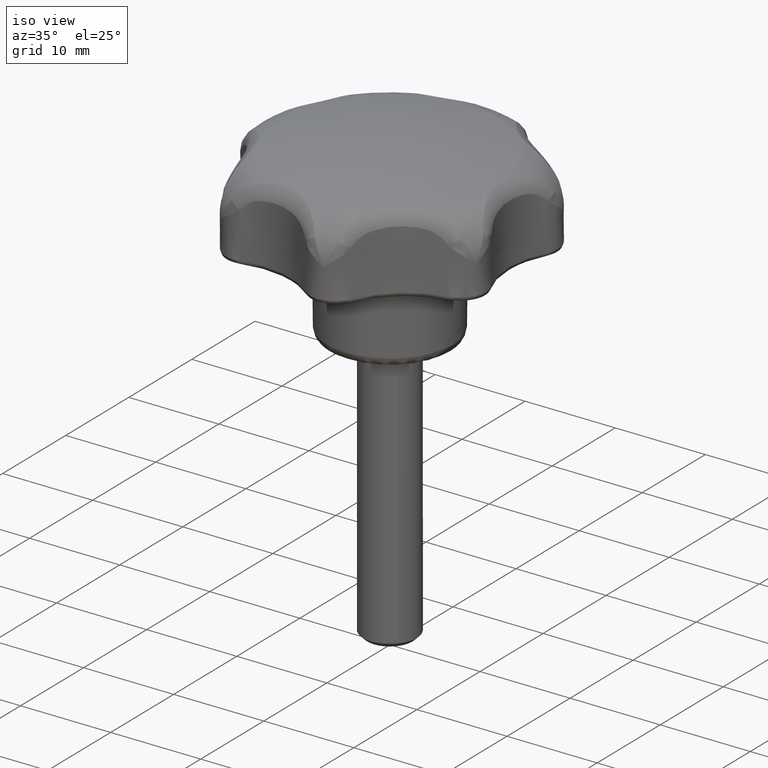
[diagram: clean part render]
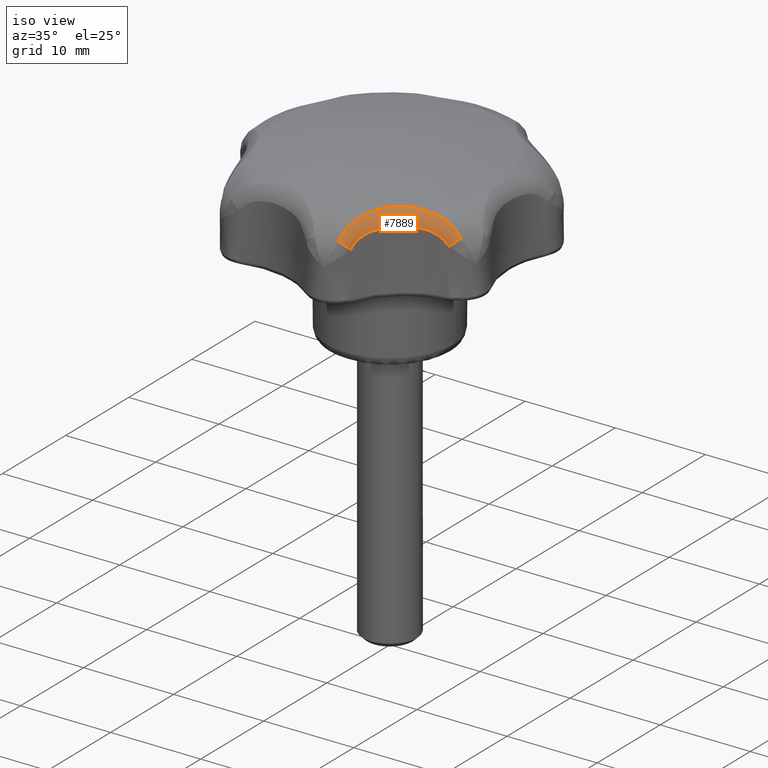
[diagram: same view with one face highlighted and labeled with its STEP entity id]
A machine part, iso view. The second image highlights one B-rep face of the part: STEP entity #7889.
In plain terms, the highlighted face is a freeform B-spline surface patch.
Its self-contained STEP definition (entity closure, byte-faithful):
#2099=CARTESIAN_POINT('',(4.498249366833649,-14.657933771030679,16.295273531500449));
#2100=VERTEX_POINT('',#2099);
#2122=CARTESIAN_POINT('',(13.289473497957600,-7.647166174740640,16.295274292669450));
#2123=VERTEX_POINT('',#2122);
#2124=CARTESIAN_POINT('',(4.498249366833649,-14.657933771030679,16.295273531500449));
#2125=CARTESIAN_POINT('',(4.547301666614835,-14.501486533801931,16.529939429933950));
#2126=CARTESIAN_POINT('',(4.604278833685854,-14.327083374151760,16.745140064422561));
#2127=CARTESIAN_POINT('',(4.703498533668909,-14.042074303940669,17.041445214824609));
#2128=CARTESIAN_POINT('',(4.738877460456014,-13.943147774873619,17.135771844831570));
#2129=CARTESIAN_POINT('',(4.795765375623886,-13.789165535130650,17.270755648086919));
#2130=CARTESIAN_POINT('',(4.815365533823633,-13.736905309844641,17.314664893337198));
#2131=CARTESIAN_POINT('',(4.855913081148104,-13.630561019317740,17.400328214134440));
#2132=CARTESIAN_POINT('',(4.876909335491823,-13.576355468543881,17.442167133465482));
#2133=CARTESIAN_POINT('',(4.984502991053751,-13.303271022882249,17.644267648411361));
#2134=CARTESIAN_POINT('',(5.079292714286489,-13.077127177694161,17.784387911328810));
#2135=CARTESIAN_POINT('',(5.289165352590865,-12.614275819528590,18.027959314767351));
#2136=CARTESIAN_POINT('',(5.404235188829826,-12.377531750667840,18.131353806650111));
#2137=CARTESIAN_POINT('',(5.595289642947687,-12.017937846422280,18.262597946153061));
#2138=CARTESIAN_POINT('',(5.661478069703806,-11.898452233224729,18.301950555650009));
#2139=CARTESIAN_POINT('',(5.798628088082479,-11.661835420837640,18.372653416792041));
#2140=CARTESIAN_POINT('',(5.869683838364023,-11.544526257276541,18.404067596445881));
#2141=CARTESIAN_POINT('',(6.090906208089690,-11.196351638662939,18.488074358361501));
#2142=CARTESIAN_POINT('',(6.249103564735735,-10.969232533770469,18.530486403391219));
#2143=CARTESIAN_POINT('',(6.590837403985158,-10.529199230870130,18.595143588504222));
#2144=CARTESIAN_POINT('',(6.774385912575411,-10.316300797439450,18.617424402711571));
#2145=CARTESIAN_POINT('',(7.022506635711278,-10.061705709125601,18.635685835091110));
#2146=CARTESIAN_POINT('',(7.073099061020627,-10.011336850719800,18.638850836703380));
#2147=CARTESIAN_POINT('',(7.175449127583285,-9.912537695061136,18.644215525570111));
#2148=CARTESIAN_POINT('',(7.227261431531995,-9.864046651679541,18.646420931925700));
#2149=CARTESIAN_POINT('',(7.384616984312316,-9.721305407181662,18.651690826111079));
#2150=CARTESIAN_POINT('',(7.492081254836988,-9.629790025064336,18.653419163061969));
#2151=CARTESIAN_POINT('',(7.822126834071614,-9.366127945604983,18.653556951328831));
#2152=CARTESIAN_POINT('',(8.052395121778393,-9.204907285530364,18.647070093605571));
#2153=CARTESIAN_POINT('',(8.412381438180280,-8.983889718054750,18.625862390046439));
#2154=CARTESIAN_POINT('',(8.534798547471725,-8.913675047012507,18.616841675139749));
#2155=CARTESIAN_POINT('',(8.784257847170524,-8.779883513470153,18.594197413473520));
#2156=CARTESIAN_POINT('',(8.911454488118887,-8.716258401308828,18.580538543643250));
#2157=CARTESIAN_POINT('',(9.295160598681646,-8.536776385478550,18.531869736254290));
#2158=CARTESIAN_POINT('',(9.555140653066816,-8.431502373862111,18.489125425107471));
#2159=CARTESIAN_POINT('',(9.948900820643528,-8.291408057651450,18.404108594151829));
#2160=CARTESIAN_POINT('',(10.081084060515771,-8.247603793721899,18.372177363919501));
#2161=CARTESIAN_POINT('',(10.343750890624850,-8.166166773736132,18.300972774400190));
#2162=CARTESIAN_POINT('',(10.474451289030149,-8.128442944612274,18.261668494817549));
#2163=CARTESIAN_POINT('',(10.863960813198119,-8.023227640303849,18.131505643429520));
#2164=CARTESIAN_POINT('',(11.120187915265999,-7.963652609066551,18.028449494022670));
#2165=CARTESIAN_POINT('',(11.496569766588729,-7.886875651902168,17.844245987909112));
#2166=CARTESIAN_POINT('',(11.621165595280580,-7.863319375940958,17.777589641798770));
#2167=CARTESIAN_POINT('',(11.863193078260149,-7.820653033398059,17.635787024985110));
#2168=CARTESIAN_POINT('',(11.980991362920220,-7.801454965642704,17.560507453400671));
#2169=CARTESIAN_POINT('',(12.324263369141150,-7.749313643538430,17.321105611509221));
#2170=CARTESIAN_POINT('',(12.539669904084700,-7.721787998382311,17.143495710726171));
#2171=CARTESIAN_POINT('',(12.840038069560750,-7.688367141500480,16.847371865266631));
#2172=CARTESIAN_POINT('',(12.936359289434430,-7.678547944736433,16.743696717064559));
#2173=CARTESIAN_POINT('',(13.120754091833600,-7.661150524232450,16.525678345322131));
#2174=CARTESIAN_POINT('',(13.207794364567439,-7.653668250358852,16.412548137069749));
#2175=CARTESIAN_POINT('',(13.289473497957600,-7.647166174740640,16.295274292669450));
#2176=B_SPLINE_CURVE_WITH_KNOTS('',3,(#2124,#2125,#2126,#2127,#2128,#2129,#2130,#2131,#2132,#2133,#2134,#2135,#2136,#2137,#2138,#2139,#2140,#2141,#2142,#2143,#2144,#2145,#2146,#2147,#2148,#2149,#2150,#2151,#2152,#2153,#2154,#2155,#2156,#2157,#2158,#2159,#2160,#2161,#2162,#2163,#2164,#2165,#2166,#2167,#2168,#2169,#2170,#2171,#2172,#2173,#2174,#2175),.UNSPECIFIED.,.F.,.U.,(4,2,2,2,2,2,2,2,2,2,2,2,2,2,2,2,2,2,2,2,2,2,2,2,2,4),(0.0,0.062500000000000,0.093750000000000,0.109375000000000,0.125000000000000,0.187500000000000,0.250000000000001,0.281250000000001,0.312500000000002,0.375000000000002,0.437500000000003,0.453125000000003,0.468750000000003,0.500000000000003,0.562500000000003,0.593750000000003,0.625000000000003,0.687500000000004,0.718750000000004,0.750000000000004,0.812500000000003,0.843750000000003,0.875000000000003,0.937500000000002,0.968750000000001,1.0),.UNSPECIFIED.);
#2177=EDGE_CURVE('',#2100,#2123,#2176,.T.);
#7643=CARTESIAN_POINT('',(5.467261805373973,-14.068937233871152,15.495992849317442));
#7644=CARTESIAN_POINT('',(5.471632998184584,-14.059511919960016,15.511425003664293));
#7645=CARTESIAN_POINT('',(5.476004174464524,-14.050086641692829,15.526857099650911));
#7646=CARTESIAN_POINT('',(5.535013413189982,-13.922848923581562,15.735184601858379));
#7647=CARTESIAN_POINT('',(5.599131420575444,-13.790608486728605,15.906028658343502));
#7648=CARTESIAN_POINT('',(5.747595977648482,-13.504081055805173,16.210418568564400));
#7649=CARTESIAN_POINT('',(5.833095651637699,-13.347877774913238,16.344993542907240));
#7650=CARTESIAN_POINT('',(6.020147792591007,-13.028985186124896,16.573263611256323));
#7651=CARTESIAN_POINT('',(6.121586691680171,-12.866221119907632,16.667772483386845));
#7652=CARTESIAN_POINT('',(6.340347124707152,-12.537981182943303,16.826692218822298));
#7653=CARTESIAN_POINT('',(6.458496672852857,-12.371440799582309,16.891333614043035));
#7654=CARTESIAN_POINT('',(6.829892861468679,-11.881360143755433,17.047877659758537));
#7655=CARTESIAN_POINT('',(7.099394283332173,-11.567499715481684,17.104613857351794));
#7656=CARTESIAN_POINT('',(7.680382724439130,-10.971211318864507,17.174783656819848));
#7657=CARTESIAN_POINT('',(7.993829901475031,-10.687453128838406,17.187992338117237));
#7658=CARTESIAN_POINT('',(8.645844890440227,-10.167828034506131,17.187844410328221));
#7659=CARTESIAN_POINT('',(8.985886651792313,-9.930059591966009,17.174772803036355));
#7660=CARTESIAN_POINT('',(9.515968666056455,-9.606251330330137,17.122622321225432));
#7661=CARTESIAN_POINT('',(9.695995746832180,-9.503810490444739,17.099542556477122));
#7662=CARTESIAN_POINT('',(10.062498036945621,-9.310091797271475,17.036296109498483));
#7663=CARTESIAN_POINT('',(10.250064217788511,-9.218360080149667,16.995799313948893));
#7664=CARTESIAN_POINT('',(10.623951037852862,-9.049539013200334,16.891390931900418));
#7665=CARTESIAN_POINT('',(10.810514308261482,-8.972239831765526,16.827563673707019));
#7666=CARTESIAN_POINT('',(11.180393379496053,-8.831476693252213,16.668329660420849));
#7667=CARTESIAN_POINT('',(11.365323743456194,-8.767568462241854,16.571738541774469));
#7668=CARTESIAN_POINT('',(11.716464830381950,-8.656680095171385,16.344027584285989));
#7669=CARTESIAN_POINT('',(11.883511449817988,-8.609273807367158,16.212947943941984));
#7670=CARTESIAN_POINT('',(12.195687855741877,-8.528234810918795,15.909600778779925));
#7671=CARTESIAN_POINT('',(12.341757219555111,-8.494441582198830,15.735731382287870));
#7672=CARTESIAN_POINT('',(12.479324268424094,-8.465142107705912,15.526813816561990));
#7673=CARTESIAN_POINT('',(12.489514699387886,-8.462971716797993,15.511338017319723));
#7674=CARTESIAN_POINT('',(12.499705168890605,-8.460801317681918,15.495862159549876));
#7675=CARTESIAN_POINT('',(5.466093613621228,-14.071480276918484,15.498075191735138));
#7676=CARTESIAN_POINT('',(5.470466969526437,-14.062043460434708,15.513526427383205));
#7677=CARTESIAN_POINT('',(5.474840317157541,-14.052606661804761,15.528977633798553));
#7678=CARTESIAN_POINT('',(5.533879677186913,-13.925211677725484,15.737565977417860));
#7679=CARTESIAN_POINT('',(5.598032492397952,-13.792812939009430,15.908628450618167));
#7680=CARTESIAN_POINT('',(5.746581419260206,-13.505960785868579,16.213418707945674));
#7681=CARTESIAN_POINT('',(5.832131136595152,-13.349589731441837,16.348176824684536));
#7682=CARTESIAN_POINT('',(6.019292600940926,-13.030378851294511,16.576771906548704));
#7683=CARTESIAN_POINT('',(6.120790412752829,-12.867464170449029,16.671423385609000));
#7684=CARTESIAN_POINT('',(6.339672183411906,-12.538947554484938,16.830597804638749));
#7685=CARTESIAN_POINT('',(6.457884363017943,-12.372280366823597,16.895351897591713));
#7686=CARTESIAN_POINT('',(6.829459805910013,-11.881870609645793,17.052186737387640));
#7687=CARTESIAN_POINT('',(7.099070378629141,-11.567852389755245,17.109064603456929));
#7688=CARTESIAN_POINT('',(7.680237552304212,-10.971340558079406,17.179423245509565));
#7689=CARTESIAN_POINT('',(7.993755929786319,-10.687512041947866,17.192681046380830));
#7690=CARTESIAN_POINT('',(8.645920004829298,-10.167768210721158,17.192532638009389));
#7691=CARTESIAN_POINT('',(8.986044739544125,-9.929947008888620,17.179412476597758));
#7692=CARTESIAN_POINT('',(9.516317574887824,-9.606046366273128,17.127122612029357));
#7693=CARTESIAN_POINT('',(9.696420347888653,-9.503572563196057,17.103984026092316));
#7694=CARTESIAN_POINT('',(10.063103691204493,-9.309785510645368,17.040595119609751));
#7695=CARTESIAN_POINT('',(10.250776546719980,-9.218018167949493,17.000013542312054));
#7696=CARTESIAN_POINT('',(10.624905688523024,-9.049128904040849,16.895409312827336));
#7697=CARTESIAN_POINT('',(10.811604916617862,-8.971797218846071,16.831470702809664));
#7698=CARTESIAN_POINT('',(11.181781519216937,-8.830977123082752,16.671981396316895));
#7699=CARTESIAN_POINT('',(11.366875150369649,-8.767044527970260,16.575244615924248));
#7700=CARTESIAN_POINT('',(11.718349739244037,-8.656120624993134,16.347209556981220));
#7701=CARTESIAN_POINT('',(11.885566671671629,-8.608703139434734,16.215951493582097));
#7702=CARTESIAN_POINT('',(12.198077982404492,-8.527653999625807,15.912205190684764));
#7703=CARTESIAN_POINT('',(12.344312607824763,-8.493862015741094,15.738113468862091));
#7704=CARTESIAN_POINT('',(12.482040120817159,-8.464568189562584,15.528934294970826));
#7705=CARTESIAN_POINT('',(12.492242298554462,-8.462398246790912,15.513439329116778));
#7706=CARTESIAN_POINT('',(12.502444495594316,-8.460228299913689,15.497944333946181));
#7707=CARTESIAN_POINT('',(5.206178235148676,-14.637291492894867,15.961383391206153));
#7708=CARTESIAN_POINT('',(5.210978067409922,-14.625414398064128,15.981178855901796));
#7709=CARTESIAN_POINT('',(5.215779909615621,-14.613532329663578,16.000982610008876));
#7710=CARTESIAN_POINT('',(5.280802117353284,-14.452636097176613,16.269147151527594));
#7711=CARTESIAN_POINT('',(5.351903432822786,-14.286548360370674,16.490908931507924));
#7712=CARTESIAN_POINT('',(5.517447150931793,-13.930490884587462,16.890989116859476));
#7713=CARTESIAN_POINT('',(5.613189265331540,-13.738198461591631,17.070771743724194));
#7714=CARTESIAN_POINT('',(5.822921026386666,-13.350396269302969,17.382356795625761));
#7715=CARTESIAN_POINT('',(5.936768536225150,-13.154735986133039,17.515155217351868));
#7716=CARTESIAN_POINT('',(6.181534638887087,-12.765366687181832,17.745669612054520));
#7717=CARTESIAN_POINT('',(6.313359983265118,-12.570444642304198,17.843793200380929));
#7718=CARTESIAN_POINT('',(6.724970817201526,-12.005037403343819,18.091894356247874));
#7719=CARTESIAN_POINT('',(7.019791718633990,-11.654172667170322,18.198425714562553));
#7720=CARTESIAN_POINT('',(7.643955189441937,-11.003640862086728,18.338979385337765));
#7721=CARTESIAN_POINT('',(7.975153484202815,-10.702327546799633,18.371800272271251));
#7722=CARTESIAN_POINT('',(8.664808686520409,-10.152724589306205,18.371460423521462));
#7723=CARTESIAN_POINT('',(9.025555592630832,-9.901809133693048,18.339005540251147));
#7724=CARTESIAN_POINT('',(9.602171190921309,-9.555612258938528,18.234478471169783));
#7725=CARTESIAN_POINT('',(9.800256425002081,-9.445387516869156,18.190144256808058));
#7726=CARTESIAN_POINT('',(10.209232743858033,-9.235886295278007,18.077837516087076));
#7727=CARTESIAN_POINT('',(10.421387160768392,-9.136126435290896,18.009367587906684));
#7728=CARTESIAN_POINT('',(10.850234699657912,-8.952329630490441,17.843879605603753));
#7729=CARTESIAN_POINT('',(11.067154501395226,-8.868084875983513,17.746959438107865));
#7730=CARTESIAN_POINT('',(11.502595914541395,-8.715520948589520,17.515937826456121));
#7731=CARTESIAN_POINT('',(11.723082024682451,-8.646747920023859,17.380247934633708));
#7732=CARTESIAN_POINT('',(12.146202354792623,-8.529127334282501,17.069480732873384));
#7733=CARTESIAN_POINT('',(12.349771494645656,-8.479808632948307,16.894351359034950));
#7734=CARTESIAN_POINT('',(12.733442125285533,-8.397558157881008,16.495567055539080));
#7735=CARTESIAN_POINT('',(12.914737725274989,-8.364488617322037,16.269853412262751));
#7736=CARTESIAN_POINT('',(13.086555659230182,-8.336821027638365,16.000926863595407));
#7737=CARTESIAN_POINT('',(13.099244280635929,-8.334777797559735,15.981066846172055));
#7738=CARTESIAN_POINT('',(13.111927590679157,-8.332735422762012,15.961215142004269));
#7739=CARTESIAN_POINT('',(4.481149670002870,-14.702426942845467,16.230173281754475));
#7740=CARTESIAN_POINT('',(4.485769196017586,-14.687680041046736,16.252283949954307));
#7741=CARTESIAN_POINT('',(4.490388713349550,-14.672933166965922,16.274394576595455));
#7742=CARTESIAN_POINT('',(4.552751323040168,-14.473853157871691,16.572883851588749));
#7743=CARTESIAN_POINT('',(4.620509509235976,-14.267827656265787,16.817668043298852));
#7744=CARTESIAN_POINT('',(4.777383429047934,-13.824878184546588,17.253802477298532));
#7745=CARTESIAN_POINT('',(4.867709642067331,-13.585055721319620,17.446625364596535));
#7746=CARTESIAN_POINT('',(5.065446229320196,-13.100638470428791,17.773703628552038));
#7747=CARTESIAN_POINT('',(5.172729851913458,-12.855878495974475,17.909124867090402));
#7748=CARTESIAN_POINT('',(5.404706884804376,-12.368939357154961,18.136847112971324));
#7749=CARTESIAN_POINT('',(5.530281938200417,-12.125247818034104,18.229479329029029));
#7750=CARTESIAN_POINT('',(5.927342764348300,-11.420308126989752,18.453813183100703));
#7751=CARTESIAN_POINT('',(6.218212304315171,-10.985321640669268,18.535147282715197));
#7752=CARTESIAN_POINT('',(6.863207828284286,-10.196103542808144,18.635743780045637));
#7753=CARTESIAN_POINT('',(7.219969409336714,-9.840485862252024,18.654691977924550));
#7754=CARTESIAN_POINT('',(7.993419821522086,-9.224390097903971,18.654479846883103));
#7755=CARTESIAN_POINT('',(8.411814409353001,-8.961024146596598,18.635728336406590));
#7756=CARTESIAN_POINT('',(9.092662298715112,-8.622549094924235,18.560967032947339));
#7757=CARTESIAN_POINT('',(9.328434563599911,-8.519162163926975,18.527881282851947));
#7758=CARTESIAN_POINT('',(9.817821608289821,-8.329801333161791,18.437228954720080));
#7759=CARTESIAN_POINT('',(10.072970437647617,-8.243426558916347,18.379187723012286));
#7760=CARTESIAN_POINT('',(10.590411563924343,-8.089804576211094,18.229561461750212));
#7761=CARTESIAN_POINT('',(10.852969265305150,-8.022314929838002,18.138095862959752));
#7762=CARTESIAN_POINT('',(11.380973700530500,-7.904034341855886,17.909923224250115));
#7763=CARTESIAN_POINT('',(11.648813564181681,-7.852935767719259,17.771518423252367));
#7764=CARTESIAN_POINT('',(12.163108762907443,-7.768375396516425,17.445241330712708));
#7765=CARTESIAN_POINT('',(12.410686156505191,-7.734521405632360,17.257426638069916));
#7766=CARTESIAN_POINT('',(12.877079893472576,-7.680055546904432,16.822786210528438));
#7767=CARTESIAN_POINT('',(13.097333482726395,-7.659383543087099,16.573669159458191));
#7768=CARTESIAN_POINT('',(13.305889641855002,-7.642837142278449,16.274332410926494));
#7769=CARTESIAN_POINT('',(13.321338456451025,-7.641611466281188,16.252159016723379));
#7770=CARTESIAN_POINT('',(13.336787300085359,-7.640385787980091,16.229985580842140));
#7771=CARTESIAN_POINT('',(4.477912190382964,-14.702717793029693,16.231373512799859));
#7772=CARTESIAN_POINT('',(4.482531595092757,-14.687958017932081,16.253494263476171));
#7773=CARTESIAN_POINT('',(4.487150982447266,-14.673198298287526,16.275614931043954));
#7774=CARTESIAN_POINT('',(4.549510988656338,-14.473947588606245,16.574235691983038));
#7775=CARTESIAN_POINT('',(4.617265159245485,-14.267744614126359,16.819117496031581));
#7776=CARTESIAN_POINT('',(4.774127864885355,-13.824413590875539,17.255398504963502));
#7777=CARTESIAN_POINT('',(4.864446873825793,-13.584385455823709,17.448270377041396));
#7778=CARTESIAN_POINT('',(5.062168873679990,-13.099557846843686,17.775396863436054));
#7779=CARTESIAN_POINT('',(5.169445256913035,-12.854593710481060,17.910818538848666));
#7780=CARTESIAN_POINT('',(5.401412860584213,-12.367258365172141,18.138505843823332));
#7781=CARTESIAN_POINT('',(5.526985792573438,-12.123373887875136,18.231102765740513));
#7782=CARTESIAN_POINT('',(5.924058445939890,-11.417900441954853,18.455303422393463));
#7783=CARTESIAN_POINT('',(6.214958588757467,-10.982606686976800,18.536514079548223));
#7784=CARTESIAN_POINT('',(6.860104192297497,-10.192893411068384,18.636923481317584));
#7785=CARTESIAN_POINT('',(7.216985943934066,-9.837081030325633,18.655809583081510));
#7786=CARTESIAN_POINT('',(7.990767242586940,-9.220722356830146,18.655598023546105));
#7787=CARTESIAN_POINT('',(8.409374691322265,-8.957284377849440,18.636907856333952));
#7788=CARTESIAN_POINT('',(9.090605094828508,-8.618781739345531,18.562285270074284));
#7789=CARTESIAN_POINT('',(9.326517736620442,-8.515399273966111,18.529253375788805));
#7790=CARTESIAN_POINT('',(9.816209875186518,-8.326070302040952,18.438708838724526));
#7791=CARTESIAN_POINT('',(10.071525180588331,-8.239723577077244,18.380721762929031));
#7792=CARTESIAN_POINT('',(10.589317918820173,-8.086174043848489,18.231184870198980));
#7793=CARTESIAN_POINT('',(10.852061122346630,-8.018728874911254,18.139754276940717));
#7794=CARTESIAN_POINT('',(11.380450867578153,-7.900545900687176,17.911616899623343));
#7795=CARTESIAN_POINT('',(11.648492199312077,-7.849500886518072,17.773211478267996));
#7796=CARTESIAN_POINT('',(12.163182760532683,-7.765045662820445,17.446885996552059));
#7797=CARTESIAN_POINT('',(12.410954098658809,-7.731243149484252,17.259023678408322));
#7798=CARTESIAN_POINT('',(12.877716997309662,-7.676873071484913,16.824237587710375));
#7799=CARTESIAN_POINT('',(13.098146161259772,-7.656245333494464,16.575021351531511));
#7800=CARTESIAN_POINT('',(13.306868623152729,-7.639739595621248,16.275552736725206));
#7801=CARTESIAN_POINT('',(13.322329967095719,-7.638516915091433,16.253369272561052));
#7802=CARTESIAN_POINT('',(13.337791369129862,-7.637294229967781,16.231185725049507));
#7810=(BOUNDED_SURFACE()B_SPLINE_SURFACE(3,2,((#7643,#7675,#7707,#7739,#7771),(#7644,#7676,#7708,#7740,#7772),(#7645,#7677,#7709,#7741,#7773),(#7646,#7678,#7710,#7742,#7774),(#7647,#7679,#7711,#7743,#7775),(#7648,#7680,#7712,#7744,#7776),(#7649,#7681,#7713,#7745,#7777),(#7650,#7682,#7714,#7746,#7778),(#7651,#7683,#7715,#7747,#7779),(#7652,#7684,#7716,#7748,#7780),(#7653,#7685,#7717,#7749,#7781),(#7654,#7686,#7718,#7750,#7782),(#7655,#7687,#7719,#7751,#7783),(#7656,#7688,#7720,#7752,#7784),(#7657,#7689,#7721,#7753,#7785),(#7658,#7690,#7722,#7754,#7786),(#7659,#7691,#7723,#7755,#7787),(#7660,#7692,#7724,#7756,#7788),(#7661,#7693,#7725,#7757,#7789),(#7662,#7694,#7726,#7758,#7790),(#7663,#7695,#7727,#7759,#7791),(#7664,#7696,#7728,#7760,#7792),(#7665,#7697,#7729,#7761,#7793),(#7666,#7698,#7730,#7762,#7794),(#7667,#7699,#7731,#7763,#7795),(#7668,#7700,#7732,#7764,#7796),(#7669,#7701,#7733,#7765,#7797),(#7670,#7702,#7734,#7766,#7798),(#7671,#7703,#7735,#7767,#7799),(#7672,#7704,#7736,#7768,#7800),(#7673,#7705,#7737,#7769,#7801),(#7674,#7706,#7738,#7770,#7802)),.UNSPECIFIED.,.F.,.F.,.U.)B_SPLINE_SURFACE_WITH_KNOTS((4,2,2,2,2,2,2,2,2,2,2,2,2,2,2,4),(3,1,1,3),(0.0,0.081203250413099,1.096243450263833,2.111283650114567,3.126323849965301,4.141364049816034,6.171444449517503,8.201524849218970,10.231605248920440,11.246645448771170,12.261685648621910,13.276725848472640,14.291766048323380,15.306806248174111,16.321846448024850,16.403049662261719),(0.0,0.010484172465563,2.071489615424244,2.081905264890901),.UNSPECIFIED.)GEOMETRIC_REPRESENTATION_ITEM()RATIONAL_B_SPLINE_SURFACE(((1.001128900796439,1.000564450398219,0.889038896791199,1.000560761233991,1.001121522467983),(1.001130793802268,1.000565396901134,0.888852830826924,1.000561701550703,1.001123403101407),(1.001132686808098,1.000566343404049,0.888666764862648,1.000562641867415,1.001125283734831),(1.001158242376770,1.000579121188385,0.886154875330931,1.000575336138045,1.001150672276089),(1.001188064309982,1.000594032154991,0.883223639371636,1.000590149648781,1.001180299297561),(1.001261982797490,1.000630991398745,0.875958096688628,1.000626867332390,1.001253734664779),(1.001306756110272,1.000653378055136,0.871557270507678,1.000649107672910,1.001298215345819),(1.001407282924519,1.000703641462260,0.861676361355954,1.000699042565846,1.001398085131693),(1.001462917909597,1.000731458954799,0.856207927512403,1.000726678247373,1.001453356494746),(1.001580728317825,1.000790364158912,0.844628191801627,1.000785198455794,1.001570396911589),(1.001643296617367,1.000821648308683,0.838478273611373,1.000816278136994,1.001632556273989),(1.001827434219019,1.000913717109510,0.820379153222742,1.000907745189770,1.001815490379541),(1.001945005663455,1.000972502831727,0.808822905568720,1.000966146697212,1.001932293394424),(1.002113781121861,1.001056890560931,0.792233749888801,1.001049982880712,1.002099965761423),(1.002163196258350,1.001081598129175,0.787376672918542,1.001074528963949,1.002149057927897),(1.002162720458924,1.001081360229462,0.787423439852710,1.001074292619113,1.002148585238226),(1.002113889461929,1.001056944730965,0.792223101004896,1.001050036696699,1.002100073393397),(1.001988259500108,1.000994129750054,0.804571430640041,1.000987632265202,1.001975264530405),(1.001938014541660,1.000969007270830,0.809510071871937,1.000962673982783,1.001925347965566),(1.001827146128763,1.000913573064381,0.820407469982507,1.000907602086100,1.001815204172200),(1.001766194461545,1.000883097230773,0.826398487313863,1.000877325438027,1.001754650876054),(1.001643350176155,1.000821675088077,0.838473009249562,1.000816304741362,1.001632609482725),(1.001581461379145,1.000790730689572,0.844556138266916,1.000785562590864,1.001571125181728),(1.001463244679977,1.000731622339989,0.856175808833801,1.000726840564701,1.001453681129403),(1.001406510553009,1.000703255276504,0.861752278739643,1.000698658904144,1.001397317808288),(1.001306432591969,1.000653216295985,0.871589069535501,1.000648946970992,1.001297893941983),(1.001262754432685,1.000631377216343,0.875882251678283,1.000627250628341,1.001254501256682),(1.001188777504247,1.000594388752123,0.883153538595139,1.000590503915247,1.001181007830494),(1.001158243274806,1.000579121637403,0.886154787061855,1.000575336584128,1.001150673168256),(1.001132686792774,1.000566343396387,0.888666766368927,1.000562641859803,1.001125283719606),(1.001130793720068,1.000565396860034,0.888852838906476,1.000561701509872,1.001123403019744),(1.001128900647363,1.000564450323682,0.889038911444025,1.000560761159941,1.001121522319882)))REPRESENTATION_ITEM('')SURFACE());
#7811=CARTESIAN_POINT('',(12.474545264131759,-8.466162524396150,15.546571694773050));
#7812=VERTEX_POINT('',#7811);
#7813=CARTESIAN_POINT('',(12.474545264131759,-8.466162524396150,15.546571694773050));
#7814=CARTESIAN_POINT('',(12.601359142751919,-8.439340474616945,15.646897938574670));
#7815=CARTESIAN_POINT('',(12.771975499506411,-8.363891904552409,15.788207641617211));
#7816=CARTESIAN_POINT('',(12.980282370570229,-8.190437746532174,15.973814250166420));
#7817=CARTESIAN_POINT('',(13.151867188720450,-7.983665229008543,16.136976100896771));
#7818=CARTESIAN_POINT('',(13.248054598769190,-7.780215951176898,16.242518922146651));
#7819=CARTESIAN_POINT('',(13.289473497957600,-7.647166174740640,16.295274292669450));
#7820=B_SPLINE_CURVE_WITH_KNOTS('',3,(#7813,#7814,#7815,#7816,#7817,#7818,#7819),.UNSPECIFIED.,.F.,.U.,(4,1,1,1,4),(0.000000027652456,0.491679825349824,0.692827560437083,0.983349184935971,1.430330768668687),.UNSPECIFIED.);
#7821=EDGE_CURVE('',#7812,#2123,#7820,.T.);
#7822=ORIENTED_EDGE('',*,*,#7821,.T.);
#7823=ORIENTED_EDGE('',*,*,#2177,.F.);
#7824=CARTESIAN_POINT('',(5.478050660799160,-14.045681209060820,15.546571506372500));
#7825=VERTEX_POINT('',#7824);
#7826=CARTESIAN_POINT('',(4.498249366833649,-14.657933771030679,16.295273531500449));
#7827=CARTESIAN_POINT('',(4.616333320097151,-14.648761765756779,16.250423917748730));
#7828=CARTESIAN_POINT('',(4.797315333040194,-14.612887452190140,16.166361931192270));
#7829=CARTESIAN_POINT('',(5.048581144520915,-14.507629689298030,16.010708285125890));
#7830=CARTESIAN_POINT('',(5.290588284257559,-14.341856463249970,15.815563165749900));
#7831=CARTESIAN_POINT('',(5.423678447662716,-14.163340866193829,15.646894511695040));
#7832=CARTESIAN_POINT('',(5.478050660799160,-14.045681209060820,15.546571506372500));
#7833=B_SPLINE_CURVE_WITH_KNOTS('',3,(#7826,#7827,#7828,#7829,#7830,#7831,#7832),.UNSPECIFIED.,.F.,.U.,(4,1,1,1,4),(0.000000027648729,0.379932261022052,0.603424897424143,0.938650897760481,1.430330657104051),.UNSPECIFIED.);
#7834=EDGE_CURVE('',#2100,#7825,#7833,.T.);
#7835=ORIENTED_EDGE('',*,*,#7834,.T.);
#7836=CARTESIAN_POINT('',(12.474545264131759,-8.466162524396150,15.546571694773050));
#7837=CARTESIAN_POINT('',(12.356155748876620,-8.491309640143539,15.726395433643299));
#7838=CARTESIAN_POINT('',(12.221800842712661,-8.522068031033058,15.889923030811900));
#7839=CARTESIAN_POINT('',(11.998748565897539,-8.579147888114429,16.112450716955319));
#7840=CARTESIAN_POINT('',(11.920791955437830,-8.600007130539421,16.182812569637779));
#7841=CARTESIAN_POINT('',(11.798634914815500,-8.634438257548611,16.282716374325279));
#7842=CARTESIAN_POINT('',(11.756931523729740,-8.646473480110201,16.315159422344070));
#7843=CARTESIAN_POINT('',(11.672410313646971,-8.671485083204411,16.377735313156329));
#7844=CARTESIAN_POINT('',(11.629651702221411,-8.684442175493444,16.407834930257629));
#7845=CARTESIAN_POINT('',(11.413554526502139,-8.751552005917333,16.552686849220589));
#7846=CARTESIAN_POINT('',(11.233336986009361,-8.812682753943923,16.650558271315742));
#7847=CARTESIAN_POINT('',(11.001436825894480,-8.899453144872684,16.754354981208429));
#7848=CARTESIAN_POINT('',(10.954723586706431,-8.917324707442944,16.774184157984099));
#7849=CARTESIAN_POINT('',(10.860688633357009,-8.954127356061397,16.812072141091448));
#7850=CARTESIAN_POINT('',(10.813320642948520,-8.973079036792846,16.830144003360878));
#7851=CARTESIAN_POINT('',(10.671501351725500,-9.031093694207836,16.881456001787729));
#7852=CARTESIAN_POINT('',(10.576980919561040,-9.071451571979845,16.911950716163549));
#7853=CARTESIAN_POINT('',(10.293885337576020,-9.197577919613339,16.994042771757009));
#7854=CARTESIAN_POINT('',(10.105789751558660,-9.288398584762941,17.036312205824181));
#7855=CARTESIAN_POINT('',(9.732510405458932,-9.483551582125937,17.103315654197271));
#7856=CARTESIAN_POINT('',(9.547323037160060,-9.587880542533220,17.128040936645199));
#7857=CARTESIAN_POINT('',(9.272639867218834,-9.754576119863632,17.155979188435062));
#7858=CARTESIAN_POINT('',(9.181959420889424,-9.811624255984029,17.163712896323219));
#7859=CARTESIAN_POINT('',(9.003043905030783,-9.928219008061859,17.176538555131341));
#7860=CARTESIAN_POINT('',(8.914696224275662,-9.987833676037008,17.181641743631872));
#7861=CARTESIAN_POINT('',(8.652943555550042,-10.170593499033320,17.193642230969200));
#7862=CARTESIAN_POINT('',(8.482824776235978,-10.297651004955870,17.197310483036159));
#7863=CARTESIAN_POINT('',(8.151246257421347,-10.562097730495310,17.197300978776351));
#7864=CARTESIAN_POINT('',(7.989786824057451,-10.699487289879880,17.193621663059599));
#7865=CARTESIAN_POINT('',(7.675550749585299,-10.984602531194341,17.177677392533528));
#7866=CARTESIAN_POINT('',(7.522774153058417,-11.132328356504480,17.165416995503019));
#7867=CARTESIAN_POINT('',(7.226051815364029,-11.438220308485560,17.128491343558519));
#7868=CARTESIAN_POINT('',(7.081607294375099,-11.597049087641279,17.103645180844762));
#7869=CARTESIAN_POINT('',(6.806900535048960,-11.919084161332240,17.036386325675320));
#7870=CARTESIAN_POINT('',(6.676116665529350,-12.082767741317900,16.993959860400832));
#7871=CARTESIAN_POINT('',(6.490013492986619,-12.330922375301750,16.911760615677991));
#7872=CARTESIAN_POINT('',(6.429658633430507,-12.414075253771021,16.881253198792521));
#7873=CARTESIAN_POINT('',(6.312353451644304,-12.580967775222479,16.812915335608199));
#7874=CARTESIAN_POINT('',(6.255316314797721,-12.664862346745689,16.774974515770278));
#7875=CARTESIAN_POINT('',(6.091976764456363,-12.912863843473829,16.650459441366731));
#7876=CARTESIAN_POINT('',(5.992554025878080,-13.074533293860370,16.552787007141738));
#7877=CARTESIAN_POINT('',(5.856947136990523,-13.308315156685440,16.379930028189200));
#7878=CARTESIAN_POINT('',(5.813999165887885,-13.384784508403129,16.317913312090280));
#7879=CARTESIAN_POINT('',(5.732516100155595,-13.534172551015081,16.184191488169478));
#7880=CARTESIAN_POINT('',(5.694575557492851,-13.605999268222760,16.113441781080660));
#7881=CARTESIAN_POINT('',(5.588837111718241,-13.811606066781151,15.890134543485230));
#7882=CARTESIAN_POINT('',(5.528881011033560,-13.935920121680610,15.726289617220960));
#7883=CARTESIAN_POINT('',(5.478050660799160,-14.045681209060820,15.546571506372500));
#7884=B_SPLINE_CURVE_WITH_KNOTS('',3,(#7836,#7837,#7838,#7839,#7840,#7841,#7842,#7843,#7844,#7845,#7846,#7847,#7848,#7849,#7850,#7851,#7852,#7853,#7854,#7855,#7856,#7857,#7858,#7859,#7860,#7861,#7862,#7863,#7864,#7865,#7866,#7867,#7868,#7869,#7870,#7871,#7872,#7873,#7874,#7875,#7876,#7877,#7878,#7879,#7880,#7881,#7882,#7883),.UNSPECIFIED.,.F.,.U.,(4,2,2,2,2,2,2,2,2,2,2,2,2,2,2,2,2,2,2,2,2,2,2,4),(9.885650E-009,0.062499999999998,0.093749999999997,0.109374999999996,0.124999999999995,0.187499999999992,0.203124999999992,0.218749999999992,0.249999999999992,0.312499999999992,0.374999999999992,0.406249999999992,0.437499999999992,0.499999999999993,0.562499999999993,0.624999999999993,0.687499999999994,0.749999999999994,0.781249999999995,0.812499999999995,0.874999999999996,0.906249999999997,0.937499999999998,0.999999952605282),.UNSPECIFIED.);
#7885=EDGE_CURVE('',#7812,#7825,#7884,.T.);
#7886=ORIENTED_EDGE('',*,*,#7885,.F.);
#7887=EDGE_LOOP('',(#7822,#7823,#7835,#7886));
#7888=FACE_OUTER_BOUND('',#7887,.T.);
#7889=ADVANCED_FACE('',(#7888),#7810,.T.);